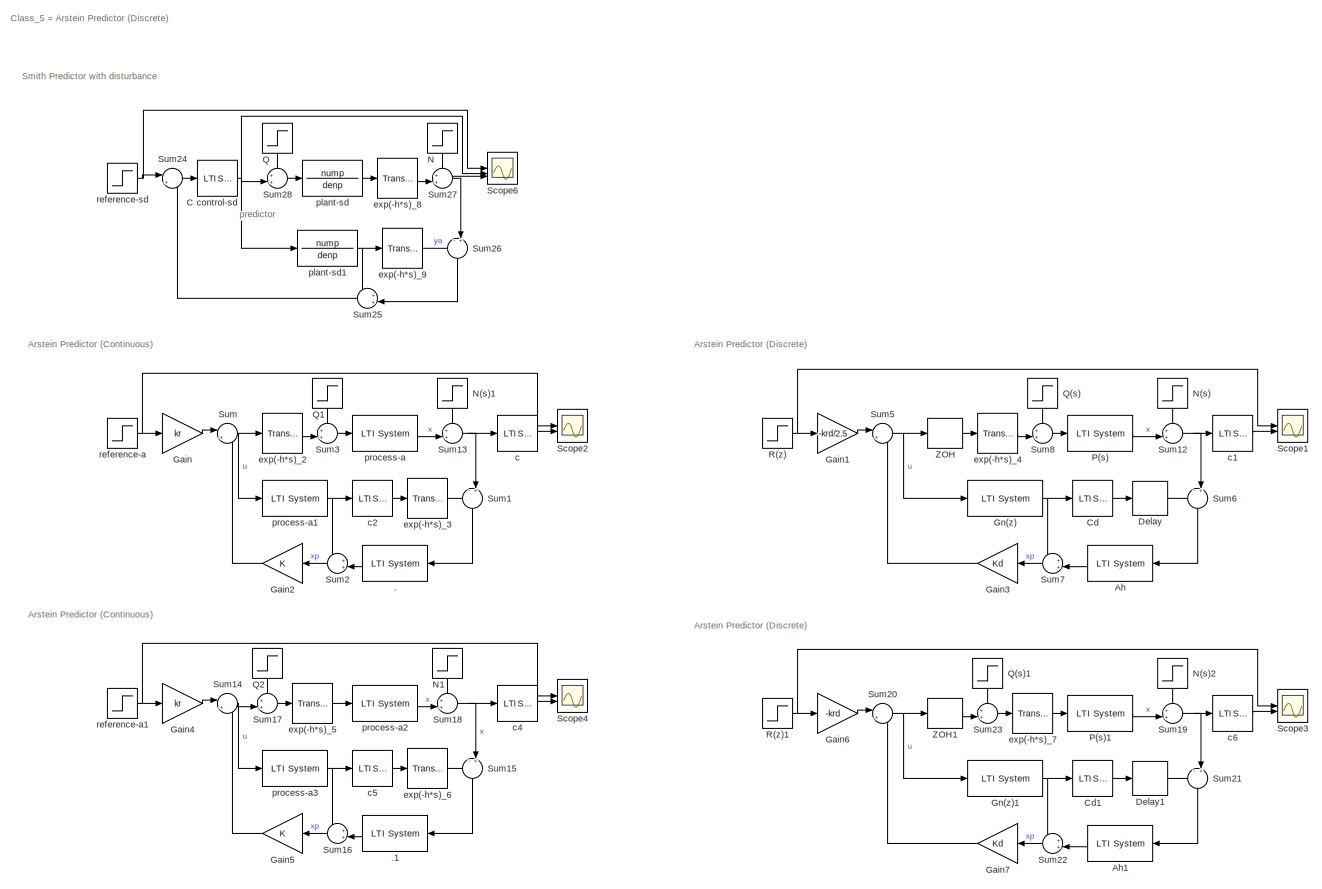
[diagram: root canvas - part 1/1, most of the canvas]
MODEL slx_110dbd0cae3e
KIND model
CONFIG AbsTol = auto
CONFIG EnableMultiTasking = off
CONFIG FixedStep = auto
CONFIG MaxStep = auto
CONFIG MinStep = auto
CONFIG RelTol = 1e-3
CONFIG SampleTimeConstraint = Unconstrained
CONFIG SolverName = VariableStepAuto
CONFIG StartTime = 0.0
CONFIG StopTime = 40
BLOCK [Reference] .  REF=cstblocks/LTI System
  SourceBlock = cstblocks/LTI System
  SourceType = LTI Block
BLOCK [Reference] .1  REF=cstblocks/LTI System
  SourceBlock = cstblocks/LTI System
  SourceType = LTI Block
BLOCK [Reference] Ah  REF=cstblocks/LTI System
  SourceBlock = cstblocks/LTI System
  SourceType = LTI Block
BLOCK [Reference] Ah1  REF=cstblocks/LTI System
  SourceBlock = cstblocks/LTI System
  SourceType = LTI Block
BLOCK [Reference] C control-sd  REF=cstblocks/LTI System
  SourceBlock = cstblocks/LTI System
  SourceType = LTI Block
BLOCK [Reference] Cd  REF=cstblocks/LTI System
  SourceBlock = cstblocks/LTI System
  SourceType = LTI Block
BLOCK [Reference] Cd1  REF=cstblocks/LTI System
  SourceBlock = cstblocks/LTI System
  SourceType = LTI Block
BLOCK [Delay] Delay
  DelayLength = hd
  InputPortMap = u0
BLOCK [Delay] Delay1
  DelayLength = hd
  InputPortMap = u0
BLOCK [Gain] Gain
  Gain = kr
BLOCK [Gain] Gain1
  Gain = -krd/2.5
BLOCK [Gain] Gain2
  Gain = K
  NameLocation = top
BLOCK [Gain] Gain3
  Gain = Kd
  NameLocation = top
BLOCK [Gain] Gain4
  Gain = kr
BLOCK [Gain] Gain5
  Gain = K
  NameLocation = top
BLOCK [Gain] Gain6
  Gain = -krd
BLOCK [Gain] Gain7
  Gain = Kd
  NameLocation = top
BLOCK [Reference] Gn(z)  REF=cstblocks/LTI System
  SourceBlock = cstblocks/LTI System
  SourceType = LTI Block
BLOCK [Reference] Gn(z)1  REF=cstblocks/LTI System
  SourceBlock = cstblocks/LTI System
  SourceType = LTI Block
BLOCK [Step] N
  After = 0.2
  NameLocation = left
  SampleTime = 0
  Time = 20
BLOCK [Step] N(s)
  After = 0.2
  NameLocation = left
  SampleTime = 0
  Time = 20
BLOCK [Step] N(s)1
  After = 0.2
  NameLocation = left
  SampleTime = 0
  Time = 20
BLOCK [Step] N(s)2
  After = 0.2
  NameLocation = left
  SampleTime = 0
  Time = 20
BLOCK [Step] N1
  After = 0.2
  NameLocation = left
  SampleTime = 0
  Time = 20
BLOCK [Reference] P(s)  REF=cstblocks/LTI System
  SourceBlock = cstblocks/LTI System
  SourceType = LTI Block
BLOCK [Reference] P(s)1  REF=cstblocks/LTI System
  SourceBlock = cstblocks/LTI System
  SourceType = LTI Block
BLOCK [Step] Q
  After = 0.2
  NameLocation = left
  SampleTime = 0
  Time = 10
BLOCK [Step] Q(s)
  After = 0.2
  NameLocation = left
  SampleTime = 0
  Time = 10
BLOCK [Step] Q(s)1
  After = 0.2
  NameLocation = left
  SampleTime = 0
  Time = 10
BLOCK [Step] Q1
  After = 0.2
  NameLocation = left
  SampleTime = 0
  Time = 10
BLOCK [Step] Q2
  After = 0.2
  NameLocation = left
  SampleTime = 0
  Time = 10
BLOCK [Step] R(z)
  SampleTime = Ts
  Time = 0
BLOCK [Step] R(z)1
  SampleTime = Ts
  Time = 0
BLOCK [Scope] Scope1
  Floating = off
  NumInputPorts = 2
  ScopeSpecificationString = Simulink.scopes.TimeScopeBlockCfg('CurrentConfiguration', extmgr.ConfigurationSet(extmgr.Configuration('Core','General UI',true,'FigureColor',[1 1 1]),extmgr.Configuration('Core','Source UI',true),extmgr.Configuration('Sources','WiredSimulink',true,'DataLoggingVariableName','ScopeData5'),extmgr.Configuration('Visuals','Time Domain',true,'SerializedDisplays',{struct('MinYLimReal','-0.17565','MaxYLi...<+1849ch>
BLOCK [Scope] Scope2
  Floating = off
  NumInputPorts = 2
  ScopeSpecificationString = Simulink.scopes.TimeScopeBlockCfg('CurrentConfiguration', extmgr.ConfigurationSet(extmgr.Configuration('Core','General UI',true,'FigureColor',[1 1 1]),extmgr.Configuration('Core','Source UI',true),extmgr.Configuration('Sources','WiredSimulink',true,'DataLoggingVariableName','ScopeData4'),extmgr.Configuration('Visuals','Time Domain',true,'SerializedDisplays',{struct('MinYLimReal','-0.18267','MaxYLi...<+1857ch>
BLOCK [Scope] Scope3
  Floating = off
  NumInputPorts = 2
  ScopeSpecificationString = Simulink.scopes.TimeScopeBlockCfg('CurrentConfiguration', extmgr.ConfigurationSet(extmgr.Configuration('Core','General UI',true,'FigureColor',[1 1 1]),extmgr.Configuration('Core','Source UI',true),extmgr.Configuration('Sources','WiredSimulink',true),extmgr.Configuration('Visuals','Time Domain',true,'SerializedDisplays',{struct('MinYLimReal','-0.17557','MaxYLimReal','1.58011','YLabelReal','','MinYL...<+1813ch>
BLOCK [Scope] Scope4
  Floating = off
  NumInputPorts = 2
  ScopeSpecificationString = Simulink.scopes.TimeScopeBlockCfg('CurrentConfiguration', extmgr.ConfigurationSet(extmgr.Configuration('Core','General UI',true,'FigureColor',[1 1 1]),extmgr.Configuration('Core','Source UI',true),extmgr.Configuration('Sources','WiredSimulink',true,'DataLoggingVariableName','ScopeData1'),extmgr.Configuration('Visuals','Time Domain',true,'SerializedDisplays',{struct('MinYLimReal','-0.18267','MaxYLi...<+1857ch>
BLOCK [Scope] Scope6
  Floating = off
  NumInputPorts = 3
  ScopeSpecificationString = Simulink.scopes.TimeScopeBlockCfg('CurrentConfiguration', extmgr.ConfigurationSet(extmgr.Configuration('Core','General UI',true,'FigureColor',[1 1 1]),extmgr.Configuration('Core','Source UI',true),extmgr.Configuration('Sources','WiredSimulink',true,'DataLoggingVariableName','ScopeData3'),extmgr.Configuration('Visuals','Time Domain',true,'SerializedDisplays',{struct('MinYLimReal','-1.3051','MaxYLim...<+1870ch>
BLOCK [Sum] Sum
  Inputs = |+-
BLOCK [Sum] Sum1
  Inputs = -+|
  NameLocation = left
BLOCK [Sum] Sum12
  Inputs = ++|
BLOCK [Sum] Sum13
  Inputs = ++|
BLOCK [Sum] Sum14
  Inputs = |+-
BLOCK [Sum] Sum15
  Inputs = -+|
  NameLocation = left
BLOCK [Sum] Sum16
  Inputs = ++|
  NameLocation = top
BLOCK [Sum] Sum17
  Inputs = ++|
BLOCK [Sum] Sum18
  Inputs = ++|
BLOCK [Sum] Sum19
  Inputs = ++|
BLOCK [Sum] Sum2
  Inputs = ++|
  NameLocation = top
BLOCK [Sum] Sum20
  Inputs = |+-
BLOCK [Sum] Sum21
  Inputs = -+|
  NameLocation = left
BLOCK [Sum] Sum22
  Inputs = ++|
  NameLocation = top
BLOCK [Sum] Sum23
  Inputs = ++|
BLOCK [Sum] Sum24
  Inputs = |+-
BLOCK [Sum] Sum25
  Inputs = ++|
  NameLocation = top
BLOCK [Sum] Sum26
  Inputs = -+|
  NameLocation = left
BLOCK [Sum] Sum27
  Inputs = ++|
BLOCK [Sum] Sum28
  Inputs = ++|
BLOCK [Sum] Sum3
  Inputs = ++|
BLOCK [Sum] Sum5
  Inputs = |+-
BLOCK [Sum] Sum6
  Inputs = -+|
  NameLocation = left
BLOCK [Sum] Sum7
  Inputs = ++|
  NameLocation = top
BLOCK [Sum] Sum8
  Inputs = ++|
BLOCK [ZeroOrderHold] ZOH
  SampleTime = -1
BLOCK [ZeroOrderHold] ZOH1
  SampleTime = -1
BLOCK [Reference] c  REF=cstblocks/LTI System
  SourceBlock = cstblocks/LTI System
  SourceType = LTI Block
BLOCK [Reference] c1  REF=cstblocks/LTI System
  SourceBlock = cstblocks/LTI System
  SourceType = LTI Block
BLOCK [Reference] c2  REF=cstblocks/LTI System
  SourceBlock = cstblocks/LTI System
  SourceType = LTI Block
BLOCK [Reference] c4  REF=cstblocks/LTI System
  SourceBlock = cstblocks/LTI System
  SourceType = LTI Block
BLOCK [Reference] c5  REF=cstblocks/LTI System
  SourceBlock = cstblocks/LTI System
  SourceType = LTI Block
BLOCK [Reference] c6  REF=cstblocks/LTI System
  SourceBlock = cstblocks/LTI System
  SourceType = LTI Block
BLOCK [TransportDelay] exp(-h*s)_2
  DelayTime = h
BLOCK [TransportDelay] exp(-h*s)_3
  DelayTime = h
BLOCK [TransportDelay] exp(-h*s)_4
  DelayTime = h
BLOCK [TransportDelay] exp(-h*s)_5
  DelayTime = h
BLOCK [TransportDelay] exp(-h*s)_6
  DelayTime = h
BLOCK [TransportDelay] exp(-h*s)_7
  DelayTime = h
BLOCK [TransportDelay] exp(-h*s)_8
  DelayTime = h
BLOCK [TransportDelay] exp(-h*s)_9
  DelayTime = h
BLOCK [TransferFcn] plant-sd
  Denominator = denp
  Numerator = nump
BLOCK [TransferFcn] plant-sd1
  Denominator = denp
  Numerator = nump
BLOCK [Reference] process-a  REF=cstblocks/LTI System
  SourceBlock = cstblocks/LTI System
  SourceType = LTI Block
BLOCK [Reference] process-a1  REF=cstblocks/LTI System
  SourceBlock = cstblocks/LTI System
  SourceType = LTI Block
BLOCK [Reference] process-a2  REF=cstblocks/LTI System
  SourceBlock = cstblocks/LTI System
  SourceType = LTI Block
BLOCK [Reference] process-a3  REF=cstblocks/LTI System
  SourceBlock = cstblocks/LTI System
  SourceType = LTI Block
BLOCK [Step] reference-a
  SampleTime = 0
  Time = 0
BLOCK [Step] reference-a1
  SampleTime = 0
  Time = 0
BLOCK [Step] reference-sd
  SampleTime = 0
  Time = 0
ANNOTATION (root): Arstein Predictor (Continuous)
ANNOTATION (root): Arstein Predictor (Discrete)
ANNOTATION (root): Class_5 = Arstein Predictor (Discrete)
ANNOTATION (root): Smith Predictor with disturbance
ANNOTATION (root): predictor
LINE .1:1 -> Sum16:2
LINE .:1 -> Sum2:2
LINE Ah1:1 -> Sum22:2
LINE Ah:1 -> Sum7:2
NET C control-sd:1 -> Scope6:2, Sum28:2, plant-sd1:1
LINE Cd1:1 -> Delay1:1
LINE Cd:1 -> Delay:1
LINE Delay1:1 -> Sum21:1
LINE Delay:1 -> Sum6:1
LINE Gain1:1 -> Sum5:1
LINE Gain2:1 -> Sum:2
LINE Gain3:1 -> Sum5:2
LINE Gain4:1 -> Sum14:1
LINE Gain5:1 -> Sum14:2
LINE Gain6:1 -> Sum20:1
LINE Gain7:1 -> Sum20:2
LINE Gain:1 -> Sum:1
NET Gn(z)1:1 -> Cd1:1, Sum22:1
NET Gn(z):1 -> Cd:1, Sum7:1
LINE N(s)1:1 -> Sum13:1
LINE N(s)2:1 -> Sum19:1
LINE N(s):1 -> Sum12:1
LINE N1:1 -> Sum18:1
LINE N:1 -> Sum27:1
LINE P(s)1:1 -> Sum19:2
LINE P(s):1 -> Sum12:2
LINE Q(s)1:1 -> Sum23:1
LINE Q(s):1 -> Sum8:1
LINE Q1:1 -> Sum3:1
LINE Q2:1 -> Sum17:1
LINE Q:1 -> Sum28:1
NET R(z)1:1 -> Gain6:1, Scope3:1
NET R(z):1 -> Gain1:1, Scope1:1
NET Sum12:1 -> Sum6:2, c1:1
NET Sum13:1 -> Sum1:2, c:1
NET Sum14:1 -> Sum17:2, process-a3:1
LINE Sum15:1 -> .1:1
LINE Sum16:1 -> Gain5:1
LINE Sum17:1 -> exp(-h*s)_5:1
NET Sum18:1 -> Sum15:2, c4:1
NET Sum19:1 -> Sum21:2, c6:1
LINE Sum1:1 -> .:1
NET Sum20:1 -> Gn(z)1:1, ZOH1:1
LINE Sum21:1 -> Ah1:1
LINE Sum22:1 -> Gain7:1
LINE Sum23:1 -> exp(-h*s)_7:1
LINE Sum24:1 -> C control-sd:1
LINE Sum25:1 -> Sum24:2
LINE Sum26:1 -> Sum25:2
NET Sum27:1 -> Scope6:3, Sum26:2
LINE Sum28:1 -> plant-sd:1
LINE Sum2:1 -> Gain2:1
LINE Sum3:1 -> process-a:1
NET Sum5:1 -> Gn(z):1, ZOH:1
LINE Sum6:1 -> Ah:1
LINE Sum7:1 -> Gain3:1
LINE Sum8:1 -> P(s):1
NET Sum:1 -> exp(-h*s)_2:1, process-a1:1
LINE ZOH1:1 -> Sum23:2
LINE ZOH:1 -> exp(-h*s)_4:1
LINE c1:1 -> Scope1:2
LINE c2:1 -> exp(-h*s)_3:1
LINE c4:1 -> Scope4:2
LINE c5:1 -> exp(-h*s)_6:1
LINE c6:1 -> Scope3:2
LINE c:1 -> Scope2:2
LINE exp(-h*s)_2:1 -> Sum3:2
LINE exp(-h*s)_3:1 -> Sum1:1
LINE exp(-h*s)_4:1 -> Sum8:2
LINE exp(-h*s)_5:1 -> process-a2:1
LINE exp(-h*s)_6:1 -> Sum15:1
LINE exp(-h*s)_7:1 -> P(s)1:1
LINE exp(-h*s)_8:1 -> Sum27:2
LINE exp(-h*s)_9:1 -> Sum26:1
NET plant-sd1:1 -> Sum25:1, exp(-h*s)_9:1
LINE plant-sd:1 -> exp(-h*s)_8:1
NET process-a1:1 -> Sum2:1, c2:1
LINE process-a2:1 -> Sum18:2
NET process-a3:1 -> Sum16:1, c5:1
LINE process-a:1 -> Sum13:2
NET reference-a1:1 -> Gain4:1, Scope4:1
NET reference-a:1 -> Gain:1, Scope2:1
NET reference-sd:1 -> Scope6:1, Sum24:1
note: NET lines group one-source signal fan-out (src -> all destinations, sorted); 1:1 wires keep LINE
